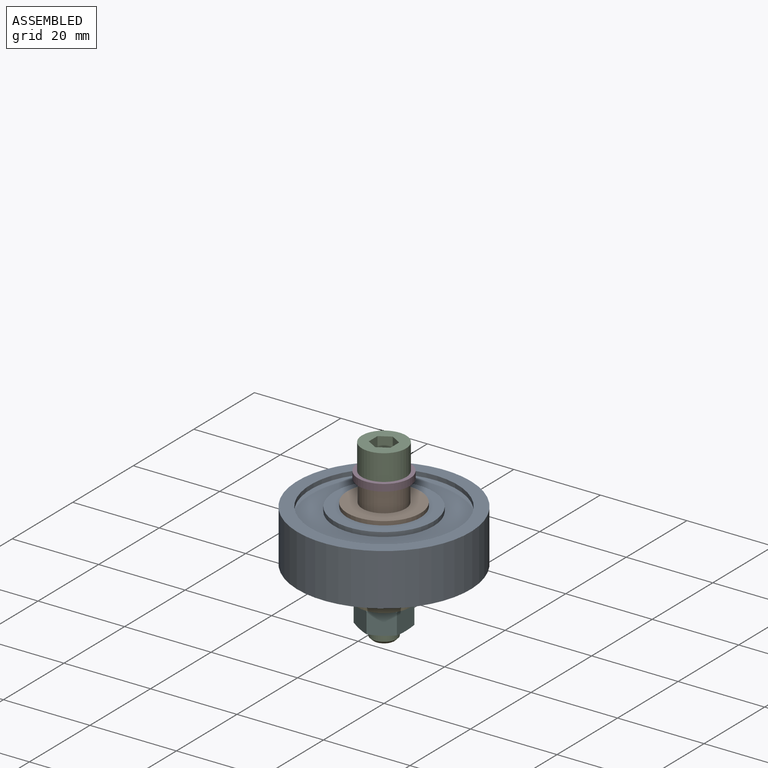
[diagram: assembled view]
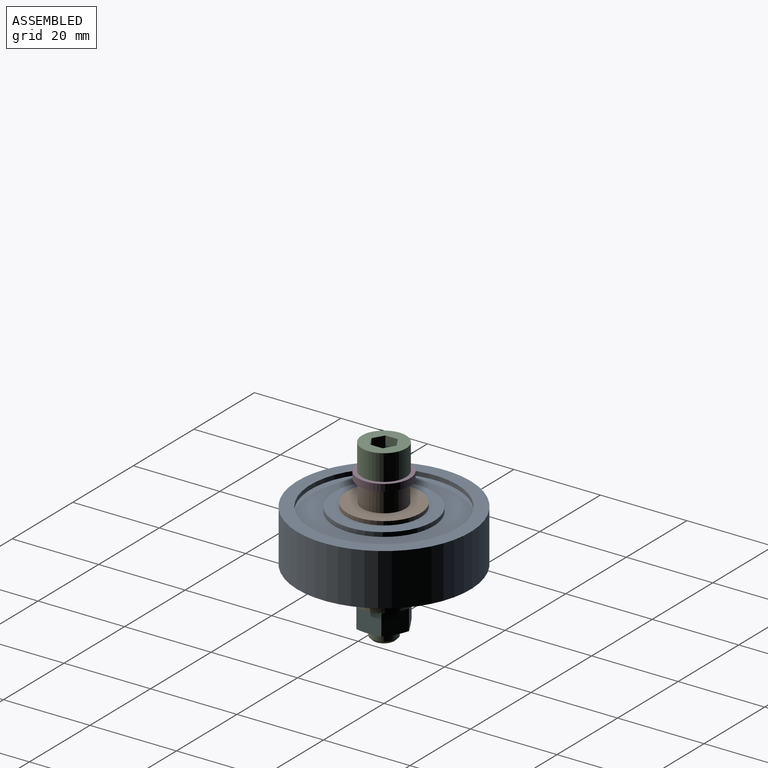
[diagram: assembled view, second angle]
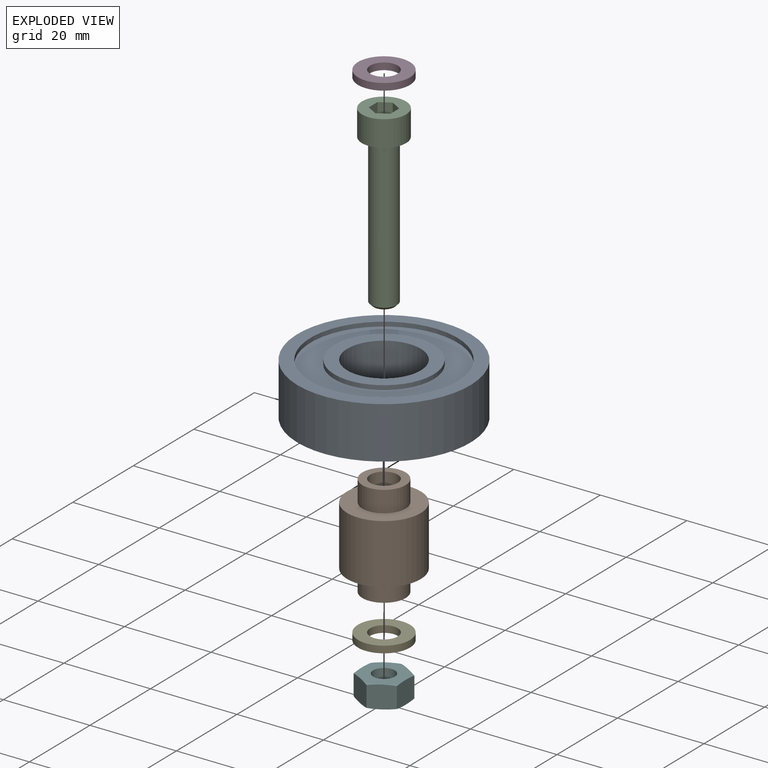
[diagram: exploded view]
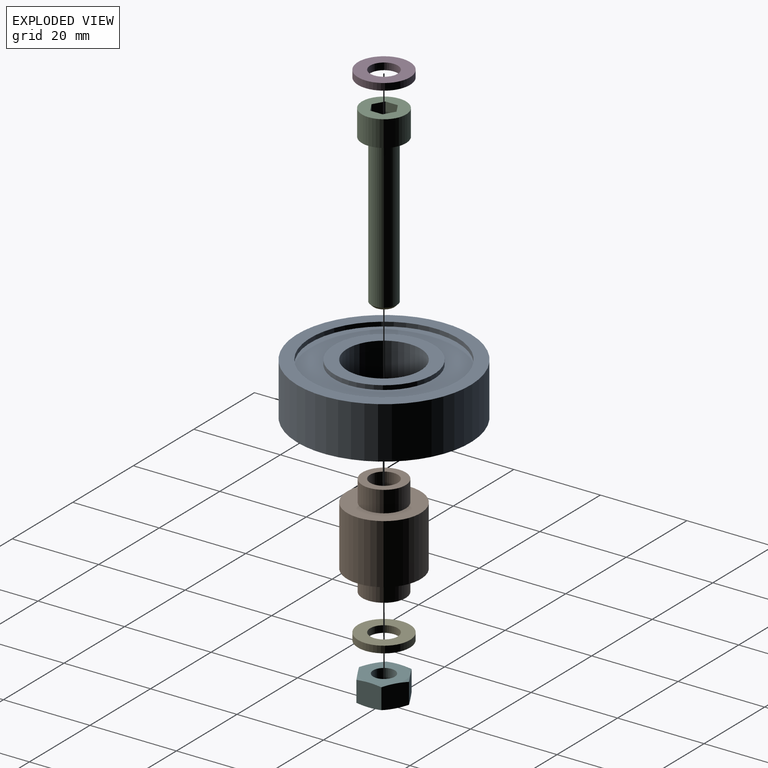
[diagram: exploded view, second angle]
ASSEMBLY  parts=6 mates=5
PART A: 12 faces, bbox 40x40x12 mm
  f0: cylinder r=11.5mm len=23mm, axis (0,0,1), area 72.3mm2, adj f1,f11
  f1: plane 23x23mm, normal (0,0,-1), area 188.5mm2, adj f0,f2
  f2: cylinder r=8.5mm len=17mm, axis (0,0,1), area 640.9mm2, adj f1,f3
  f3: plane 23x23mm, normal (0,0,1), area 188.5mm2, adj f2,f4
  f4: cylinder r=11.5mm len=23mm, axis (0,0,1), area 72.3mm2, adj f3,f5
  f5: plane 34x34mm, normal (0,0,1), area 492.4mm2, adj f4,f6
  f6: cylinder r=17mm len=34mm, axis (0,0,1), area 106.8mm2, adj f5,f7
  f7: plane 40x40mm, normal (0,0,1), area 348.7mm2, adj f6,f8
  f8: cylinder r=20mm len=40mm, axis (0,0,1), area 1508mm2, adj f7,f9
  f9: plane 40x40mm, normal (0,0,-1), area 348.7mm2, adj f8,f10
  f10: cylinder r=17mm len=34mm, axis (0,0,1), area 106.8mm2, adj f9,f11
  f11: plane 34x34mm, normal (0,0,-1), area 492.4mm2, adj f0,f10
PART B: 8 faces, bbox 17x17x23.6 mm
  f0: cylinder r=5mm len=10mm, axis (0,0,1), area 153.9mm2, adj f1,f6
  f1: plane 17x17mm, normal (0,0,-1), area 148.4mm2, adj f0,f2
  f2: cylinder r=8.5mm len=17mm, axis (0,0,1), area 737mm2, adj f1,f3
  f3: plane 17x17mm, normal (0,0,1), area 148.4mm2, adj f2,f4
  f4: cylinder r=5mm len=10mm, axis (0,0,1), area 153.9mm2, adj f3,f5
  f5: plane 10x10mm, normal (0,0,1), area 46.4mm2, adj f4,f7
  f6: plane 10x10mm, normal (0,0,-1), area 46.4mm2, adj f0,f7
  f7: cylinder r=3.2mm len=23.6mm, axis (0,0,1), area 474.5mm2, adj f5,f6
PART C: 13 faces, bbox 10.2x10.2x41 mm
  f0: plane 10.2x10.2mm, normal (0,0,1), area 60.1mm2, adj f3,f6,f7,f8,f9,f10,f11
  f1: cone r=2.38mm half-angle=45deg, axis (0,0,1), area 14.7mm2, adj f2,f5
  f2: plane 4.77x4.77mm, normal (0,0,-1), area 17.9mm2, adj f1
  f3: cylinder r=5.1mm len=10.2mm, axis (0,0,1), area 192.3mm2, adj f0,f4
  f4: plane 10.2x10.2mm, normal (0,0,-1), area 53.4mm2, adj f3,f5
  f5: cylinder r=3mm len=34.39mm, axis (0,0,1), area 648.1mm2, adj f1,f4
  f6: plane 4x2.5mm, normal (-0.5,-0.87,0), area 11.5mm2, adj f0,f7,f11,f12
  f7: plane 4x2.5mm, normal (0.5,-0.87,0), area 11.5mm2, adj f0,f6,f8,f12
  f8: plane 4x2.89mm, normal (1,0,0), area 11.5mm2, adj f0,f7,f9,f12
  f9: plane 4x2.5mm, normal (0.5,0.87,0), area 11.5mm2, adj f0,f8,f10,f12
  f10: plane 4x2.5mm, normal (-0.5,0.87,0), area 11.5mm2, adj f0,f9,f11,f12
  f11: plane 4x2.89mm, normal (-1,0,0), area 11.5mm2, adj f0,f6,f10,f12
  f12: plane 5.77x5mm, normal (0,0,1), area 21.7mm2, adj f6,f7,f8,f9,f10,f11
PART D: 4 faces, bbox 12x12x1.6 mm
  f0: cylinder r=3.2mm len=6.4mm, axis (0,0,-1), area 32.2mm2, adj f2,f3
  f1: cylinder r=6mm len=12mm, axis (0,0,-1), area 60.3mm2, adj f2,f3
  f2: plane 12x12mm, normal (0,0,1), area 80.9mm2, adj f0,f1
  f3: plane 12x12mm, normal (0,0,-1), area 80.9mm2, adj f0,f1
PART E: same geometry as D
PART F: 21 faces, bbox 12x12x5.6 mm
  f0: plane 10x10mm, normal (0,0,1), area 58.9mm2, adj f2,f9,f10,f11,f12,f13,f14
  f1: plane 10x10mm, normal (0,0,-1), area 58.9mm2, adj f2,f3,f4,f5,f6,f7,f8
  f2: cylinder r=2.5mm len=5.2mm, axis (0,0,-1), area 81.7mm2, adj f0,f1
  f3: cone r=2.67mm half-angle=75deg, axis (0,0,1), area 2.2mm2, adj f1,f15,f20
  f4: cone r=2.67mm half-angle=75deg, axis (0,0,1), area 2.2mm2, adj f1,f19,f20
  f5: cone r=2.67mm half-angle=75deg, axis (0,0,1), area 2.2mm2, adj f1,f18,f19
  f6: cone r=2.67mm half-angle=75deg, axis (0,0,1), area 2.2mm2, adj f1,f17,f18
  f7: cone r=2.67mm half-angle=75deg, axis (0,0,1), area 2.2mm2, adj f1,f16,f17
  f8: cone r=2.67mm half-angle=75deg, axis (0,0,1), area 2.2mm2, adj f1,f15,f16
  f9: cone r=2.67mm half-angle=75deg, axis (0,0,-1), area 2.2mm2, adj f0,f15,f16
  f10: cone r=2.67mm half-angle=75deg, axis (0,0,-1), area 2.2mm2, adj f0,f16,f17
  f11: cone r=2.67mm half-angle=75deg, axis (0,0,-1), area 2.2mm2, adj f0,f17,f18
  f12: cone r=2.67mm half-angle=75deg, axis (0,0,-1), area 2.2mm2, adj f0,f18,f19
  f13: cone r=2.67mm half-angle=75deg, axis (0,0,-1), area 2.2mm2, adj f0,f19,f20
  f14: cone r=2.67mm half-angle=75deg, axis (0,0,-1), area 2.2mm2, adj f0,f15,f20
  f15: plane 6.21x5.63mm, normal (1,0,0), area 29.2mm2, adj f3,f8,f9,f14,f16,f20
  f16: plane 5.63x5.43mm, normal (0.5,-0.87,0), area 29.2mm2, adj f7,f8,f9,f10,f15,f17
  f17: plane 5.63x5.43mm, normal (-0.5,-0.87,0), area 29.2mm2, adj f6,f7,f10,f11,f16,f18
  f18: plane 6.21x5.63mm, normal (-1,0,0), area 29.2mm2, adj f5,f6,f11,f12,f17,f19
  f19: plane 5.63x5.43mm, normal (-0.5,0.87,0), area 29.2mm2, adj f4,f5,f12,f13,f18,f20
  f20: plane 5.63x5.43mm, normal (0.5,0.87,0), area 29.2mm2, adj f3,f4,f13,f14,f15,f19
PLACE A rot(axis=(0,0,-1),103.2deg) t=(0,0,0)mm
PLACE B at identity fixed
PLACE C t=(0,0,13.5)mm
PLACE D t=(0,0,11.9)mm
PLACE E rot(axis=(1,0,0),180deg) t=(0,0,-11.9)mm
PLACE F t=(0,0,-18.7)mm
MATE fastened E.f0 <-> B.f0  axis (0,0,-1) through (0,0,-11.9)mm
MATE revolute A.f0 <-> B.f0  axis (0,0,1) through (0,0,0)mm
MATE fastened F.f2 <-> E.f0  axis (0,0,1) through (0,0,-13.5)mm
MATE fastened C.f1 <-> D.f0  axis (0,0,1) through (0,0,13.5)mm
MATE fastened D.f0 <-> B.f0  axis (0,0,1) through (0,0,11.9)mm
